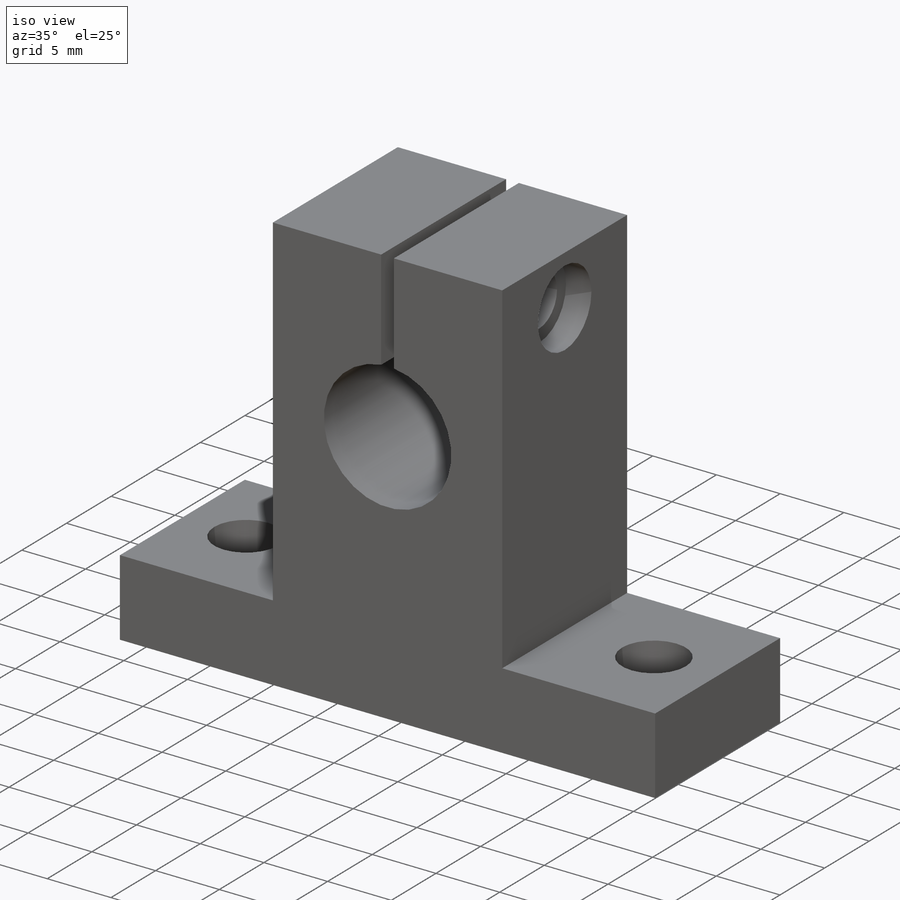
[diagram: iso view]
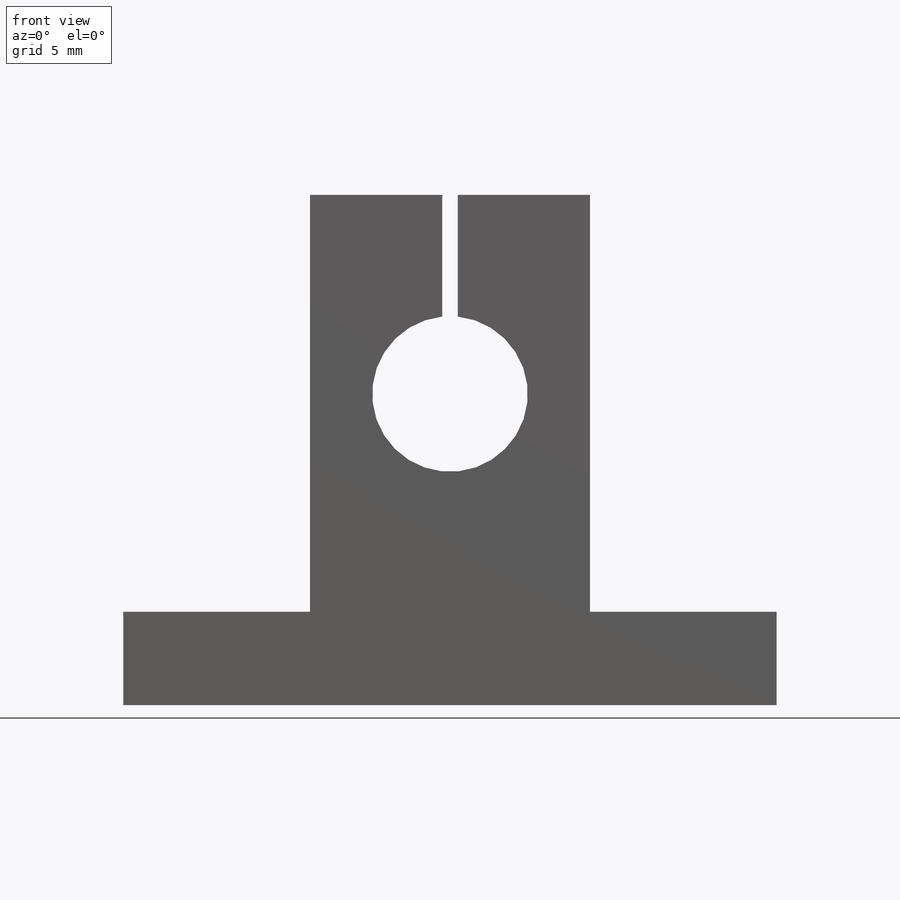
[diagram: front view]
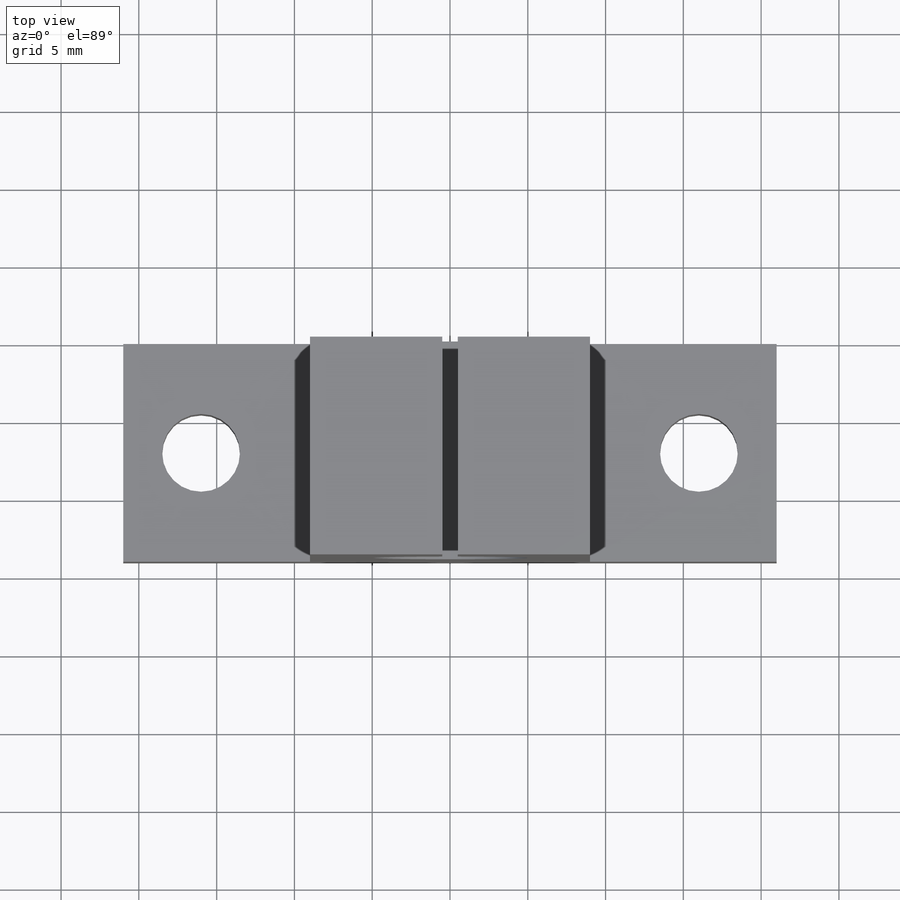
[diagram: top view]
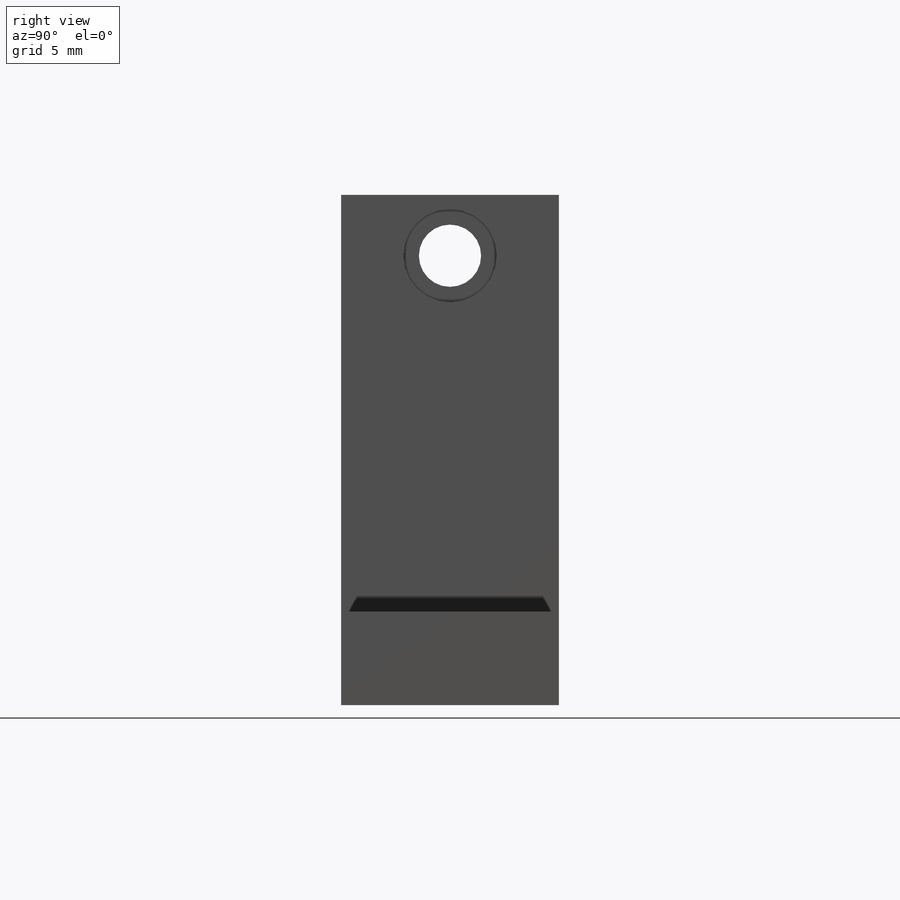
[diagram: right view]
SOLIDWORKS PART (.sldprt)
format: sldprt  version: not decoded by parser v0  size: 223,232 bytes
history: native  units: mm
features: sketch x5, cut_extrude x4, plane x3, material x1, extrude x1 (+10 scaffold rows collapsed)
feature tree (24):
  scaffold x10  (default folders/planes/origin — collapsed)
  material  "材质 <未指定>"
  plane  "前视基准面"
  plane  "上视基准面"
  plane  "右视基准面"
  sketch  "草图1"  dims[c1.D5=10.0mm c1.D1=42.0mm c1.D2=6.0mm c1.D3=32.8mm c2.D1=21.0mm c2.D4=18.0mm c2.D6=20.0mm]
  extrude  "凸台-拉伸1"  Depth=14mm
  sketch  "草图2"  dims[D1=5.0mm D2=5.0mm]
  cut_extrude  "切除-拉伸1"  [1 undecoded]
  sketch  "草图3"  dims[D1=1.0mm]
  cut_extrude  "切除-拉伸2"  Depth=14mm
  sketch  "草图4"  dims[D1=4.0mm]
  cut_extrude  "切除-拉伸3"  Depth=20mm
  sketch  "草图5"  dims[D1=6.0mm]
  cut_extrude  "切除-拉伸4"  Depth=2mm
decode coverage: 9 of 10 modeling features carry decoded parameters
note: 1 parameter value undecoded
note: suppression state not decoded; provenance and decode notes live in map.json
